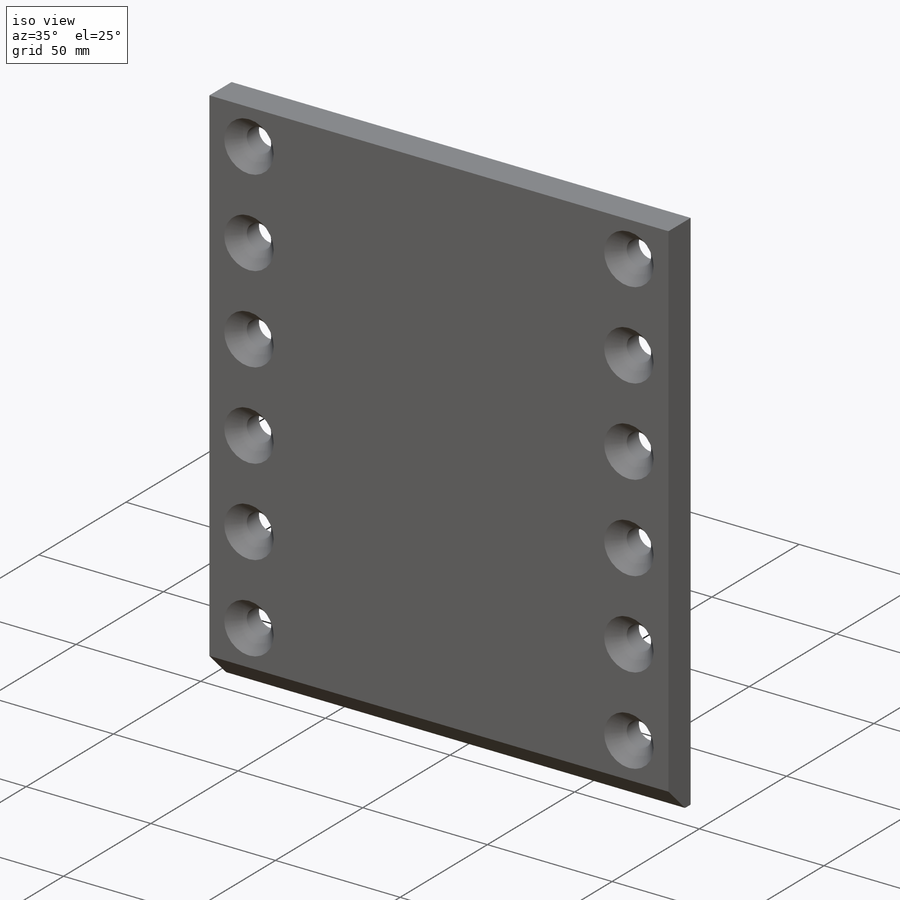
[diagram: iso view]
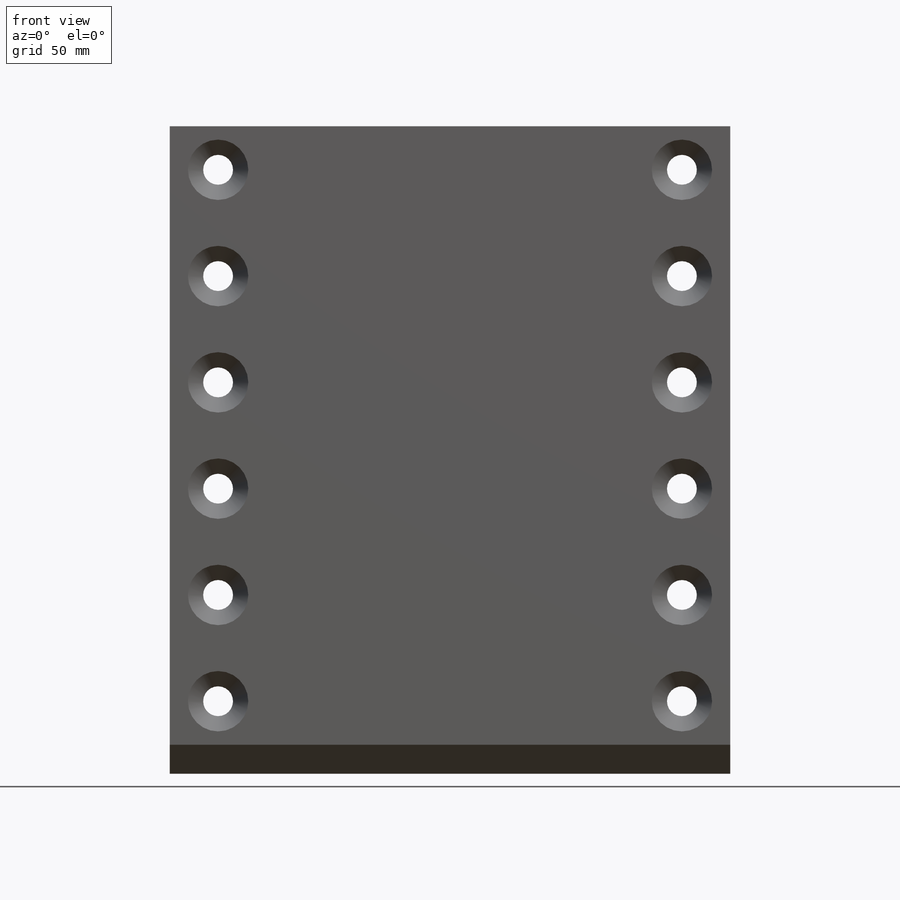
[diagram: front view]
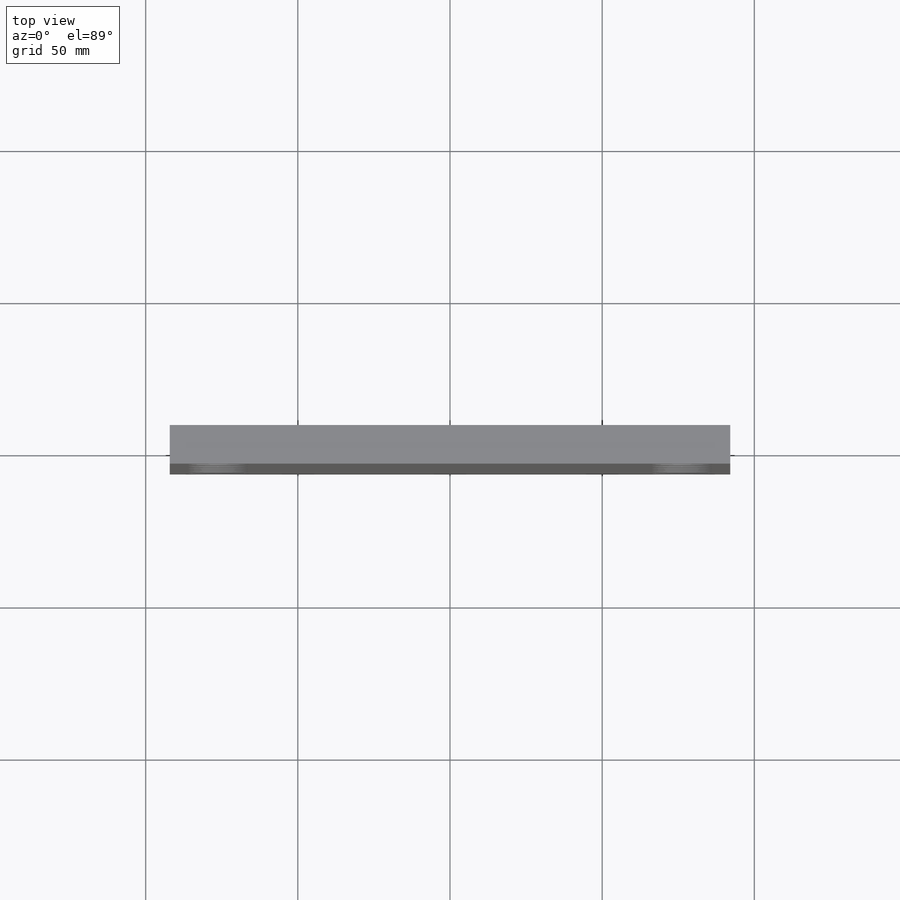
[diagram: top view]
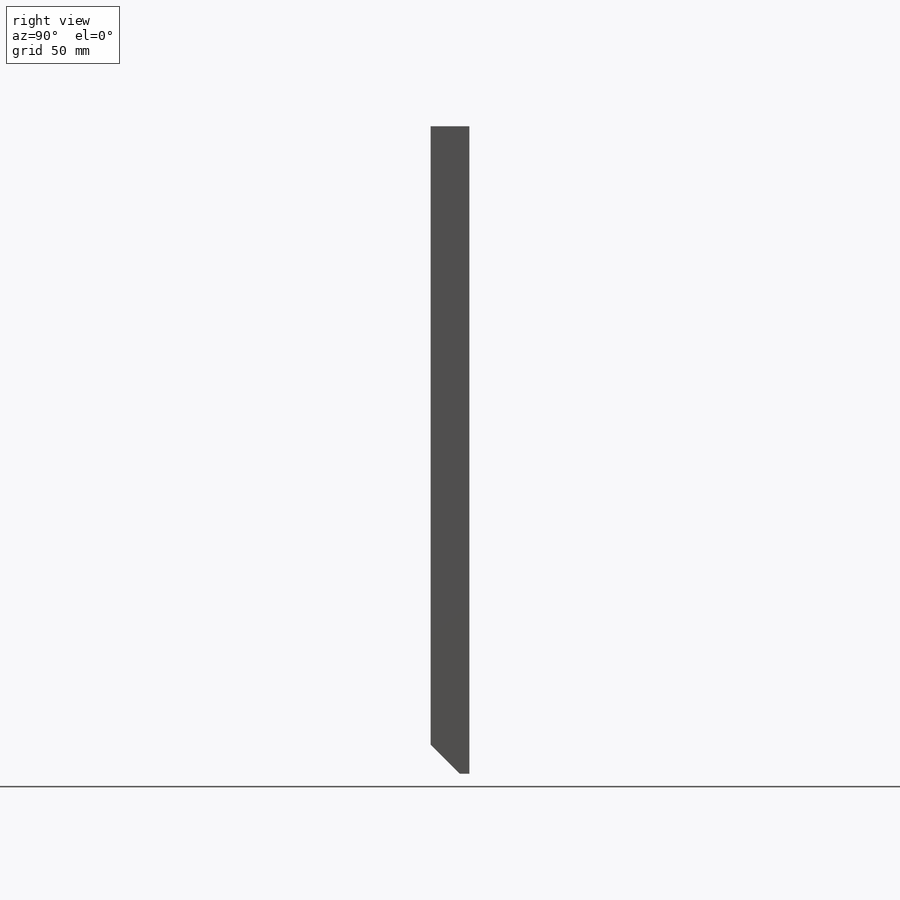
[diagram: right view]
SOLIDWORKS PART (.sldprt)
format: sldprt  version: not decoded by parser v0  size: 240,640 bytes
history: native  units: mm
features: sketch x5, material x1, extrude x1, hole x1, chamfer x1 (+12 scaffold rows collapsed)
feature tree (21):
  scaffold x12  (default folders/planes/origin — collapsed)
  material  "Material <not specified>"
  sketch  "Sketch1"  dims[D1=184.15mm D2=212.725mm]
  extrude  "Boss-Extrude1"  Depth=12.7mm
  sketch  "Sketch2"
  sketch  "Sketch3"
  hole  "CSK for 3/8 Flat Head Socket Cap Screw1"  Diameter=9.8044mm Depth=12.7mm
  sketch  "Sketch7"  dims[D1=152.4mm D2=174.625mm D3=14.2875mm D4=34.925mm D5=34.925mm D6=34.925mm D7=34.925mm D8=34.925mm D9=23.8125mm]
  sketch  "Sketch6"  dims[hole-wizard template sketch: 54 standard entries collapsed; hole parameters kept: c17.Thru Hole Dia.=9.8044mm c17.Thru Hole Depth=12.7mm c17.Near C'Sink Dia.=19.8374mm c17.D4=~3.666174mm c17.Near C'Sink Angle=82.0deg]
  chamfer  "Chamfer1"  Distance=9.525mm Angle=45deg
decode coverage: 6 of 8 modeling features carry decoded parameters
note: ~ marks probable driven/reference dimensions
note: suppression state not decoded; provenance and decode notes live in map.json
